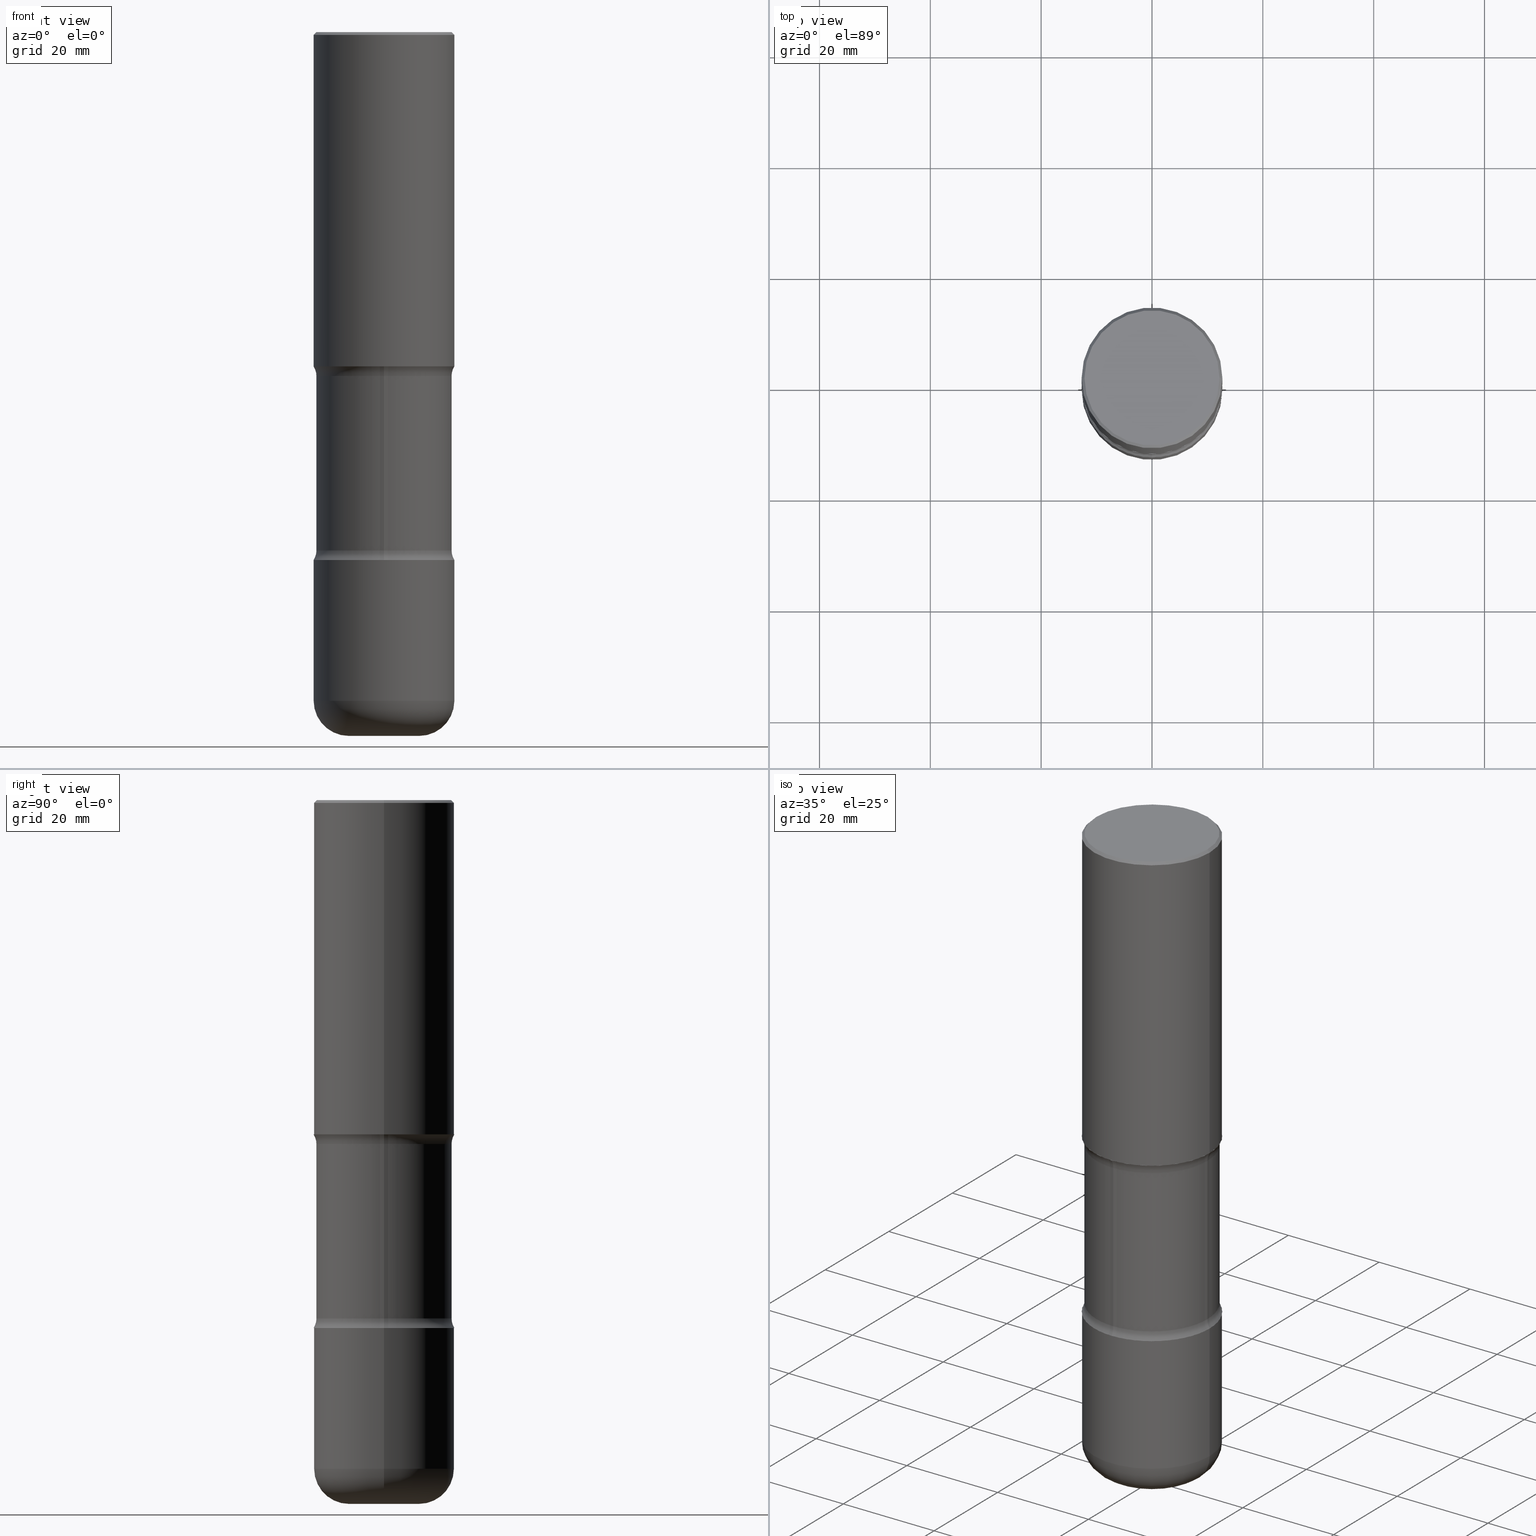
[diagram: canonical four-view strip — front | top / right | iso, engineering-drawing reading convention]
A machine part, canonical four-view strip (front | top / right | iso — engineering-drawing reading convention). The complete STEP part file that produces these views, byte-faithful:
ISO-10303-21;
HEADER;
FILE_DESCRIPTION (( 'STEP AP203' ),
    '1' );
FILE_NAME ('36258.STEP',
    '2023-03-11T07:13:19',
    ( '' ),
    ( '' ),
    'SwSTEP 2.0',
    'SolidWorks 2022',
    '' );
FILE_SCHEMA (( 'CONFIG_CONTROL_DESIGN' ));
ENDSEC;

DATA;
#1 = DIRECTION ( 'NONE',  ( -2.445468806185136597E-29, 3.491481338843145583E-15, 1.000000000000000000 ) ) ;
#2 = CARTESIAN_POINT ( 'NONE',  ( -0.4799999999999999267, -4.929010667377771797E-15, -2.442823299831252903 ) ) ;
#3 = CARTESIAN_POINT ( 'NONE',  ( 0.4999999999999996669, -3.500078625662626713E-15, -0.02000000000000010797 ) ) ;
#4 = LINE ( 'NONE', #75, #434 ) ;
#5 = EDGE_CURVE ( 'NONE', #775, #15, #606, .T. ) ;
#6 = DIRECTION ( 'NONE',  ( 6.982962677686265922E-15, 1.000000000000000000, -3.278217592397115862E-15 ) ) ;
#7 = CARTESIAN_POINT ( 'NONE',  ( 0.000000000000000000, 0.000000000000000000, 0.000000000000000000 ) ) ;
#8 = CLOSED_SHELL ( 'NONE', ( #347, #468, #777, #763, #713, #550, #351, #736 ) ) ;
#9 = AXIS2_PLACEMENT_3D ( 'NONE', #7, #258, #563 ) ;
#10 = AXIS2_PLACEMENT_3D ( 'NONE', #608, #300, #544 ) ;
#11 = ORIENTED_EDGE ( 'NONE', *, *, #371, .F. ) ;
#12 = AXIS2_PLACEMENT_3D ( 'NONE', #76, #328, #13 ) ;
#13 = DIRECTION ( 'NONE',  ( 1.000000000000000000, -6.982962677686265922E-15, 4.876176775795935793E-29 ) ) ;
#14 = DIRECTION ( 'NONE',  ( 6.982962677686265922E-15, 1.000000000000000000, -3.278217592397115862E-15 ) ) ;
#15 = VERTEX_POINT ( 'NONE', #179 ) ;
#16 = ORIENTED_EDGE ( 'NONE', *, *, #20, .F. ) ;
#17 = ADVANCED_FACE ( 'NONE', ( #545 ), #117, .F. ) ;
#18 = CYLINDRICAL_SURFACE ( 'NONE', #380, 0.4800000000000000933 ) ;
#19 = CYLINDRICAL_SURFACE ( 'NONE', #216, 0.4800000000000000933 ) ;
#20 = EDGE_CURVE ( 'NONE', #334, #160, #279, .T. ) ;
#21 =( NAMED_UNIT ( * ) PLANE_ANGLE_UNIT ( ) SI_UNIT ( $, .RADIAN. ) );
#22 = ORIENTED_EDGE ( 'NONE', *, *, #439, .T. ) ;
#23 = LINE ( 'NONE', #353, #546 ) ;
#24 = CIRCLE ( 'NONE', #416, 0.2000000000000000111 ) ;
#25 = ORIENTED_EDGE ( 'NONE', *, *, #311, .F. ) ;
#26 = EDGE_LOOP ( 'NONE', ( #484, #674, #460, #744 ) ) ;
#27 = AXIS2_PLACEMENT_3D ( 'NONE', #506, #388, #685 ) ;
#28 = DIRECTION ( 'NONE',  ( 2.445077249876360463E-29, -3.492042069763313983E-15, -1.000000000000000000 ) ) ;
#29 = DIRECTION ( 'NONE',  ( -0.7071067811865452413, 2.468850131082233000E-15, -0.7071067811865497932 ) ) ;
#30 = ORIENTED_EDGE ( 'NONE', *, *, #628, .F. ) ;
#31 = EDGE_LOOP ( 'NONE', ( #387, #65 ) ) ;
#32 = CARTESIAN_POINT ( 'NONE',  ( 1.222734403092568523E-28, -1.745740669421572989E-14, -5.000000000000000000 ) ) ;
#33 = FACE_OUTER_BOUND ( 'NONE', #559, .T. ) ;
#34 = ORIENTED_EDGE ( 'NONE', *, *, #311, .T. ) ;
#35 = ADVANCED_FACE ( 'NONE', ( #663 ), #459, .T. ) ;
#36 = CC_DESIGN_PERSON_AND_ORGANIZATION_ASSIGNMENT ( #361, #116, ( #769 ) ) ;
#37 = ORIENTED_EDGE ( 'NONE', *, *, #622, .F. ) ;
#38 = AXIS2_PLACEMENT_3D ( 'NONE', #538, #290, #702 ) ;
#39 = CARTESIAN_POINT ( 'NONE',  ( 0.2500000000000000555, -1.920314736363729656E-14, -5.000000000000000000 ) ) ;
#40 = CIRCLE ( 'NONE', #617, 0.5000000000000000000 ) ;
#41 = DIRECTION ( 'NONE',  ( -1.000000000000000000, 6.982962677686267499E-15, 0.000000000000000000 ) ) ;
#42 = APPROVAL_PERSON_ORGANIZATION ( #655, #84, #670 ) ;
#43 = VERTEX_POINT ( 'NONE', #615 ) ;
#44 = APPROVAL ( #600, 'UNSPECIFIED' ) ;
#45 = DIRECTION ( 'NONE',  ( -1.000000000000000000, 6.982962677686265922E-15, -4.883557194083112340E-29 ) ) ;
#46 = VERTEX_POINT ( 'NONE', #794 ) ;
#47 = PERSON_AND_ORGANIZATION ( #399, #754 ) ;
#48 = DIRECTION ( 'NONE',  ( 2.438088387897960049E-29, -3.491481338843145188E-15, -1.000000000000000000 ) ) ;
#49 = ORIENTED_EDGE ( 'NONE', *, *, #164, .F. ) ;
#50 = APPROVAL_ROLE ( '' ) ;
#51 = CARTESIAN_POINT ( 'NONE',  ( -0.6050000000000000933, -8.557467683613607939E-15, -3.682176700168747541 ) ) ;
#52 = AXIS2_PLACEMENT_3D ( 'NONE', #800, #106, #372 ) ;
#53 = DIRECTION ( 'NONE',  ( 6.982962677686265922E-15, 1.000000000000000000, -3.492042069763314377E-15 ) ) ;
#54 = CARTESIAN_POINT ( 'NONE',  ( -3.430248998885673879E-15, -0.5000000000000131006, -3.749999999999998668 ) ) ;
#55 = VERTEX_POINT ( 'NONE', #552 ) ;
#56 = EDGE_CURVE ( 'NONE', #688, #46, #63, .T. ) ;
#57 = DATE_AND_TIME ( #413, #437 ) ;
#58 = FACE_OUTER_BOUND ( 'NONE', #636, .T. ) ;
#59 = VERTEX_POINT ( 'NONE', #549 ) ;
#60 = VERTEX_POINT ( 'NONE', #503 ) ;
#61 = DIRECTION ( 'NONE',  ( -1.000000000000000000, 7.105427357600998703E-15, 0.000000000000000000 ) ) ;
#62 = CIRCLE ( 'NONE', #705, 0.4799999999999999267 ) ;
#63 = LINE ( 'NONE', #308, #692 ) ;
#64 = AXIS2_PLACEMENT_3D ( 'NONE', #497, #45, #182 ) ;
#65 = ORIENTED_EDGE ( 'NONE', *, *, #164, .T. ) ;
#66 = AXIS2_PLACEMENT_3D ( 'NONE', #759, #384, #261 ) ;
#67 = AXIS2_PLACEMENT_3D ( 'NONE', #400, #159, #698 ) ;
#68 = DIRECTION ( 'NONE',  ( 6.982962677686265922E-15, 1.000000000000000000, -4.553079989440437514E-15 ) ) ;
#69 = EDGE_CURVE ( 'NONE', #778, #273, #798, .T. ) ;
#70 = DIRECTION ( 'NONE',  ( -2.445468806185136597E-29, 3.491481338843145583E-15, 1.000000000000000000 ) ) ;
#71 = EDGE_CURVE ( 'NONE', #55, #593, #364, .T. ) ;
#72 = ORIENTED_EDGE ( 'NONE', *, *, #528, .F. ) ;
#73 = CARTESIAN_POINT ( 'NONE',  ( 5.807988414689700538E-29, -8.292268179752471696E-15, -2.375000000000000000 ) ) ;
#74 = APPLICATION_CONTEXT ( 'configuration controlled 3d designs of mechanical parts and assemblies' ) ;
#75 = CARTESIAN_POINT ( 'NONE',  ( 0.5000000000000000000, -3.491481338843133355E-15, 2.438088387897967896E-29 ) ) ;
#76 = CARTESIAN_POINT ( 'NONE',  ( 5.807988414689700538E-29, -8.292268179752471696E-15, -2.375000000000000000 ) ) ;
#77 = CYLINDRICAL_SURFACE ( 'NONE', #9, 0.5000000000000000000 ) ;
#78 = CIRCLE ( 'NONE', #293, 0.5000000000000000000 ) ;
#79 = EDGE_LOOP ( 'NONE', ( #533, #728, #412, #695 ) ) ;
#80 = DIRECTION ( 'NONE',  ( 1.000000000000000000, -6.982962677686276966E-15, 0.000000000000000000 ) ) ;
#81 = DIRECTION ( 'NONE',  ( 2.445077249876360463E-29, -3.492042069763313983E-15, -1.000000000000000000 ) ) ;
#82 = ADVANCED_FACE ( 'NONE', ( #498 ), #432, .T. ) ;
#83 = EDGE_LOOP ( 'NONE', ( #585, #151, #302, #210 ) ) ;
#84 = APPROVAL ( #786, 'UNSPECIFIED' ) ;
#85 = DIRECTION ( 'NONE',  ( 1.000000000000000000, -6.982962677686265922E-15, 4.883557194083112901E-29 ) ) ;
#86 = DIRECTION ( 'NONE',  ( -2.445468806185136597E-29, 3.491481338843145583E-15, 1.000000000000000000 ) ) ;
#87 = ORIENTED_EDGE ( 'NONE', *, *, #797, .F. ) ;
#88 = FACE_OUTER_BOUND ( 'NONE', #298, .T. ) ;
#89 = AXIS2_PLACEMENT_3D ( 'NONE', #414, #575, #645 ) ;
#90 = AXIS2_PLACEMENT_3D ( 'NONE', #73, #1, #199 ) ;
#91 = PERSON_AND_ORGANIZATION_ROLE ( 'design_owner' ) ;
#92 = ORIENTED_EDGE ( 'NONE', *, *, #93, .F. ) ;
#93 = EDGE_CURVE ( 'NONE', #757, #96, #519, .T. ) ;
#94 = CARTESIAN_POINT ( 'NONE',  ( 9.004648259124392254E-29, -1.285625123496221394E-14, -3.682176700168747541 ) ) ;
#95 = ORIENTED_EDGE ( 'NONE', *, *, #424, .T. ) ;
#96 = VERTEX_POINT ( 'NONE', #126 ) ;
#97 = PLANE ( 'NONE',  #463 ) ;
#98 = CARTESIAN_POINT ( 'NONE',  ( 1.161597682937940108E-28, -1.658453635950494339E-14, -4.750000000000000000 ) ) ;
#99 = ORIENTED_EDGE ( 'NONE', *, *, #231, .F. ) ;
#100 = APPLICATION_CONTEXT ( 'configuration controlled 3d designs of mechanical parts and assemblies' ) ;
#101 = EDGE_LOOP ( 'NONE', ( #269, #638 ) ) ;
#102 = CARTESIAN_POINT ( 'NONE',  ( 3.491481338843225258E-15, 0.4999999999999869549, -3.750000000000001776 ) ) ;
#103 = VERTEX_POINT ( 'NONE', #554 ) ;
#104 = APPROVAL_DATE_TIME ( #421, #84 ) ;
#105 = CIRCLE ( 'NONE', #565, 0.4799999999999996492 ) ;
#106 = DIRECTION ( 'NONE',  ( 2.445077249876360463E-29, -3.492042069763313983E-15, -1.000000000000000000 ) ) ;
#107 = AXIS2_PLACEMENT_3D ( 'NONE', #690, #632, #80 ) ;
#108 = ORIENTED_EDGE ( 'NONE', *, *, #788, .F. ) ;
#109 = DIRECTION ( 'NONE',  ( -2.445468806185136597E-29, 3.491481338843145583E-15, 1.000000000000000000 ) ) ;
#110 = ORIENTED_EDGE ( 'NONE', *, *, #231, .T. ) ;
#111 = DATE_TIME_ROLE ( 'classification_date' ) ;
#112 = DIRECTION ( 'NONE',  ( 1.000000000000000000, -6.982962677686267499E-15, 4.883557194083114022E-29 ) ) ;
#113 = ORIENTED_EDGE ( 'NONE', *, *, #135, .T. ) ;
#114 = ORIENTED_EDGE ( 'NONE', *, *, #485, .F. ) ;
#115 = EDGE_CURVE ( 'NONE', #273, #60, #229, .T. ) ;
#116 = PERSON_AND_ORGANIZATION_ROLE ( 'design_supplier' ) ;
#117 = TOROIDAL_SURFACE ( 'NONE', #366, 0.6049999999999998712, 0.1249999999999999445 ) ;
#118 = DIRECTION ( 'NONE',  ( -1.000000000000000000, 6.982962677686265922E-15, -4.876176775795935793E-29 ) ) ;
#119 = AXIS2_PLACEMENT_3D ( 'NONE', #664, #603, #255 ) ;
#120 = LOCAL_TIME ( 2, 13, 19.00000000000000000, #425 ) ;
#121 = DIRECTION ( 'NONE',  ( 1.000000000000000000, -6.982962677686266711E-15, 0.000000000000000000 ) ) ;
#122 = APPLICATION_PROTOCOL_DEFINITION ( 'international standard', 'config_control_design', 1994, #100 ) ;
#123 = PLANE ( 'NONE',  #10 ) ;
#124 = DIRECTION ( 'NONE',  ( -6.982962677686266711E-15, -1.000000000000000000, 3.491481338843145583E-15 ) ) ;
#125 = DIRECTION ( 'NONE',  ( -2.445468806185136597E-29, 3.491481338843145583E-15, 1.000000000000000000 ) ) ;
#126 = CARTESIAN_POINT ( 'NONE',  ( -3.430248998885707800E-15, -0.5000000000000083267, -2.374999999999998668 ) ) ;
#127 = ADVANCED_FACE ( 'NONE', ( #442 ), #19, .T. ) ;
#128 = CARTESIAN_POINT ( 'NONE',  ( -0.5000000000000000000, -1.303182268070444246E-14, -4.750000000000000000 ) ) ;
#129 = AXIS2_PLACEMENT_3D ( 'NONE', #241, #733, #609 ) ;
#130 = DIRECTION ( 'NONE',  ( 2.445077249876360463E-29, -3.492042069763313983E-15, -1.000000000000000000 ) ) ;
#131 = AXIS2_PLACEMENT_3D ( 'NONE', #683, #133, #382 ) ;
#132 = ADVANCED_FACE ( 'NONE', ( #383 ), #568, .F. ) ;
#133 = DIRECTION ( 'NONE',  ( -2.445468806185136597E-29, 3.491481338843145583E-15, 1.000000000000000000 ) ) ;
#134 = CARTESIAN_POINT ( 'NONE',  ( 0.5000000000000000000, -1.178374951859560347E-14, -2.375000000000000000 ) ) ;
#135 = EDGE_CURVE ( 'NONE', #198, #60, #254, .T. ) ;
#136 = DIRECTION ( 'NONE',  ( -2.445468806185136877E-29, 3.491481338843145188E-15, 1.000000000000000000 ) ) ;
#137 = CARTESIAN_POINT ( 'NONE',  ( 9.004674815765322981E-29, -1.285621320434089027E-14, -3.682176700168747541 ) ) ;
#138 = ORIENTED_EDGE ( 'NONE', *, *, #457, .T. ) ;
#139 = ORIENTED_EDGE ( 'NONE', *, *, #424, .F. ) ;
#140 = CYLINDRICAL_SURFACE ( 'NONE', #356, 0.4800000000000000933 ) ;
#141 = ORIENTED_EDGE ( 'NONE', *, *, #594, .F. ) ;
#142 = DIRECTION ( 'NONE',  ( 1.000000000000000000, -6.982962677686266711E-15, 0.000000000000000000 ) ) ;
#143 = EDGE_CURVE ( 'NONE', #593, #46, #265, .T. ) ;
#144 = AXIS2_PLACEMENT_3D ( 'NONE', #678, #676, #6 ) ;
#145 = CC_DESIGN_APPROVAL ( #84, ( #619 ) ) ;
#146 = DIRECTION ( 'NONE',  ( -2.445468806185136597E-29, 3.491481338843145583E-15, 1.000000000000000000 ) ) ;
#147 = DIRECTION ( 'NONE',  ( 6.982962677686265922E-15, 1.000000000000000000, -3.414809992080327938E-15 ) ) ;
#148 = ORIENTED_EDGE ( 'NONE', *, *, #208, .F. ) ;
#149 = EDGE_LOOP ( 'NONE', ( #761, #259, #360, #37 ) ) ;
#150 = CARTESIAN_POINT ( 'NONE',  ( 1.084885639565374248E-27, -1.548929168812571305E-13, -44.36309458625913749 ) ) ;
#151 = ORIENTED_EDGE ( 'NONE', *, *, #586, .T. ) ;
#152 = LENGTH_MEASURE_WITH_UNIT ( LENGTH_MEASURE( 0.02539999999999999897 ), #469 );
#153 = ORIENTED_EDGE ( 'NONE', *, *, #167, .T. ) ;
#154 = DIRECTION ( 'NONE',  ( 2.445468806185136597E-29, -3.491481338843145583E-15, -1.000000000000000000 ) ) ;
#155 = MANIFOLD_SOLID_BREP ( 'Body-Move/Copy2[1]', #433 ) ;
#156 = EDGE_LOOP ( 'NONE', ( #487, #783, #183, #539 ) ) ;
#157 = AXIS2_PLACEMENT_3D ( 'NONE', #466, #86, #583 ) ;
#158 = AXIS2_PLACEMENT_3D ( 'NONE', #286, #531, #714 ) ;
#159 = DIRECTION ( 'NONE',  ( 0.000000000000000000, 0.000000000000000000, 1.000000000000000000 ) ) ;
#160 = VERTEX_POINT ( 'NONE', #324 ) ;
#161 = DIRECTION ( 'NONE',  ( -2.445468806185136597E-29, 3.491481338843145583E-15, 1.000000000000000000 ) ) ;
#162 = EDGE_LOOP ( 'NONE', ( #114, #532, #689, #139 ) ) ;
#163 = ORIENTED_EDGE ( 'NONE', *, *, #277, .T. ) ;
#164 = EDGE_CURVE ( 'NONE', #472, #333, #805, .T. ) ;
#165 = DIRECTION ( 'NONE',  ( 2.445077249876360463E-29, -3.492042069763313588E-15, -1.000000000000000000 ) ) ;
#166 = DIRECTION ( 'NONE',  ( -2.445468806185136597E-29, 3.491481338843145583E-15, 1.000000000000000000 ) ) ;
#167 = EDGE_CURVE ( 'NONE', #703, #59, #377, .T. ) ;
#168 = ORIENTED_EDGE ( 'NONE', *, *, #589, .F. ) ;
#169 = EDGE_CURVE ( 'NONE', #59, #703, #417, .T. ) ;
#170 = DATE_AND_TIME ( #235, #501 ) ;
#171 = CARTESIAN_POINT ( 'NONE',  ( 5.807988414689700538E-29, -8.292268179752471696E-15, -2.375000000000000000 ) ) ;
#172 = ORIENTED_EDGE ( 'NONE', *, *, #512, .F. ) ;
#173 = MANIFOLD_SOLID_BREP ( 'Body-Move/Copy2[2]', #630 ) ;
#174 = CONICAL_SURFACE ( 'NONE', #499, 1127.411546571512872, 1.535889741755011029 ) ;
#175 = AXIS2_PLACEMENT_3D ( 'NONE', #486, #48, #118 ) ;
#176 = PERSON_AND_ORGANIZATION_ROLE ( 'classification_officer' ) ;
#177 = AXIS2_PLACEMENT_3D ( 'NONE', #476, #651, #225 ) ;
#178 = FACE_OUTER_BOUND ( 'NONE', #149, .T. ) ;
#179 = CARTESIAN_POINT ( 'NONE',  ( 0.5000000000000000000, -2.007601769834807675E-14, -4.750000000000000000 ) ) ;
#180 = ORIENTED_EDGE ( 'NONE', *, *, #327, .T. ) ;
#181 = PERSON_AND_ORGANIZATION_ROLE ( 'creator' ) ;
#182 = DIRECTION ( 'NONE',  ( -6.982962677686265133E-15, -1.000000000000000000, 0.000000000000000000 ) ) ;
#183 = ORIENTED_EDGE ( 'NONE', *, *, #212, .T. ) ;
#184 = APPROVAL_ROLE ( '' ) ;
#185 = EDGE_CURVE ( 'NONE', #629, #60, #390, .T. ) ;
#186 = DIRECTION ( 'NONE',  ( 0.7071067811865452413, -7.319954787623248157E-15, -0.7071067811865497932 ) ) ;
#187 = APPROVAL_DATE_TIME ( #57, #518 ) ;
#188 = CIRCLE ( 'NONE', #157, 0.4799999999999999267 ) ;
#189 = PLANE ( 'NONE',  #175 ) ;
#190 = AXIS2_PLACEMENT_3D ( 'NONE', #548, #109, #240 ) ;
#191 = AXIS2_PLACEMENT_3D ( 'NONE', #32, #338, #576 ) ;
#192 = CARTESIAN_POINT ( 'NONE',  ( -4.150601288651715033E-15, -0.6050000000000084199, -2.442823299831251127 ) ) ;
#193 = VERTEX_POINT ( 'NONE', #687 ) ;
#194 = PRODUCT_DEFINITION_SHAPE ( 'NONE', 'NONE',  #197 ) ;
#195 = FACE_OUTER_BOUND ( 'NONE', #376, .T. ) ;
#196 = DIRECTION ( 'NONE',  ( 1.000000000000000000, -6.982962677686266711E-15, 0.000000000000000000 ) ) ;
#197 = PRODUCT_DEFINITION ( 'UNKNOWN', '', #769, #493 ) ;
#198 = VERTEX_POINT ( 'NONE', #134 ) ;
#199 = DIRECTION ( 'NONE',  ( 1.000000000000000000, -6.982962677686265133E-15, 0.000000000000000000 ) ) ;
#200 = DIRECTION ( 'NONE',  ( 6.982962677686265922E-15, 1.000000000000000000, -3.278217592397115862E-15 ) ) ;
#201 = DIRECTION ( 'NONE',  ( 1.000000000000000000, -6.982962677686267499E-15, 4.876036955247132767E-29 ) ) ;
#202 = AXIS2_PLACEMENT_3D ( 'NONE', #275, #70, #142 ) ;
#203 = CARTESIAN_POINT ( 'NONE',  ( 9.004674815765322981E-29, -1.285621320434089027E-14, -3.682176700168747541 ) ) ;
#204 = CONICAL_SURFACE ( 'NONE', #419, 0.4999999999999996669, 0.7853981633974450594 ) ;
#205 = VERTEX_POINT ( 'NONE', #561 ) ;
#206 = CARTESIAN_POINT ( 'NONE',  ( 3.351822085289499056E-15, 0.4799999999999873257, -3.682176700168749317 ) ) ;
#207 = CARTESIAN_POINT ( 'NONE',  ( 1.220830945357531404E-28, -1.743582138958183345E-14, -4.993015846101650723 ) ) ;
#208 = EDGE_CURVE ( 'NONE', #333, #472, #765, .T. ) ;
#209 = ORIENTED_EDGE ( 'NONE', *, *, #729, .T. ) ;
#210 = ORIENTED_EDGE ( 'NONE', *, *, #729, .F. ) ;
#211 = DIRECTION ( 'NONE',  ( 2.445077249876360463E-29, -3.492042069763313588E-15, -1.000000000000000000 ) ) ;
#212 = EDGE_CURVE ( 'NONE', #15, #205, #4, .T. ) ;
#213 = FACE_OUTER_BOUND ( 'NONE', #101, .T. ) ;
#214 = EDGE_LOOP ( 'NONE', ( #272, #291, #295, #350 ) ) ;
#215 = DIRECTION ( 'NONE',  ( 1.000000000000000000, -6.982962677686264344E-15, 0.000000000000000000 ) ) ;
#216 = AXIS2_PLACEMENT_3D ( 'NONE', #448, #507, #750 ) ;
#217 = CIRCLE ( 'NONE', #190, 0.5000000000000000000 ) ;
#218 = TOROIDAL_SURFACE ( 'NONE', #392, 0.6049999999999998712, 0.1249999999999999445 ) ;
#219 = FACE_OUTER_BOUND ( 'NONE', #233, .T. ) ;
#220 = ORIENTED_EDGE ( 'NONE', *, *, #406, .F. ) ;
#221 = DIRECTION ( 'NONE',  ( 1.000000000000000000, -6.982962677686269077E-15, 0.000000000000000000 ) ) ;
#222 = FACE_OUTER_BOUND ( 'NONE', #234, .T. ) ;
#223 = CARTESIAN_POINT ( 'NONE',  ( -2.799738369678767810E-18, -1.743302165121203264E-14, -4.993015846101650723 ) ) ;
#224 = EDGE_LOOP ( 'NONE', ( #428, #599, #758, #359 ) ) ;
#225 = DIRECTION ( 'NONE',  ( -6.982962677686265133E-15, -1.000000000000000000, 0.000000000000000000 ) ) ;
#226 = EDGE_LOOP ( 'NONE', ( #665, #16 ) ) ;
#227 = DIRECTION ( 'NONE',  ( 1.000000000000000000, -6.982962677686265922E-15, 0.000000000000000000 ) ) ;
#228 = ORIENTED_EDGE ( 'NONE', *, *, #788, .T. ) ;
#229 = CIRCLE ( 'NONE', #616, 0.4799999999999999267 ) ;
#230 = CIRCLE ( 'NONE', #331, 0.2500000000000000555 ) ;
#231 = EDGE_CURVE ( 'NONE', #774, #301, #24, .T. ) ;
#232 = DIRECTION ( 'NONE',  ( 1.000000000000000000, -6.982962677686265133E-15, 0.000000000000000000 ) ) ;
#233 = EDGE_LOOP ( 'NONE', ( #30, #650 ) ) ;
#234 = EDGE_LOOP ( 'NONE', ( #483, #748, #113, #34 ) ) ;
#235 = CALENDAR_DATE ( 2023, 11, 3 ) ;
#236 = CARTESIAN_POINT ( 'NONE',  ( -0.5000000000000001110, -9.540341341861294907E-15, -3.750000000000000000 ) ) ;
#237 = CC_DESIGN_DATE_AND_TIME_ASSIGNMENT ( #170, #111, ( #619 ) ) ;
#238 = ORIENTED_EDGE ( 'NONE', *, *, #479, .F. ) ;
#239 = CALENDAR_DATE ( 2023, 11, 3 ) ;
#240 = DIRECTION ( 'NONE',  ( 1.000000000000000000, -6.982962677686266711E-15, 0.000000000000000000 ) ) ;
#241 = CARTESIAN_POINT ( 'NONE',  ( 4.890937612370299433E-31, -6.982962677686328587E-17, -0.02000000000000010797 ) ) ;
#242 = AXIS2_PLACEMENT_3D ( 'NONE', #137, #696, #627 ) ;
#243 = CIRCLE ( 'NONE', #64, 0.1250000000000000278 ) ;
#244 = VECTOR ( 'NONE', #211, 39.37007874015748143 ) ;
#245 = FACE_BOUND ( 'NONE', #724, .T. ) ;
#246 = CARTESIAN_POINT ( 'NONE',  ( 0.000000000000000000, 0.000000000000000000, 0.000000000000000000 ) ) ;
#247 = EDGE_CURVE ( 'NONE', #757, #103, #62, .T. ) ;
#248 = PERSON_AND_ORGANIZATION ( #399, #754 ) ;
#249 = DIRECTION ( 'NONE',  ( -1.000000000000000000, 7.105427357601001859E-15, 0.000000000000000000 ) ) ;
#250 = CARTESIAN_POINT ( 'NONE',  ( 5.973848178759570522E-29, -8.529071965452055172E-15, -2.442823299831253347 ) ) ;
#251 = CALENDAR_DATE ( 2023, 11, 3 ) ;
#252 = DIRECTION ( 'NONE',  ( -2.445468806185136597E-29, 3.491481338843145583E-15, 1.000000000000000000 ) ) ;
#253 = ORIENTED_EDGE ( 'NONE', *, *, #586, .F. ) ;
#254 = CIRCLE ( 'NONE', #751, 0.1249999999999999029 ) ;
#255 = DIRECTION ( 'NONE',  ( -1.000000000000000000, 7.105427357601005014E-15, 0.000000000000000000 ) ) ;
#256 = DIRECTION ( 'NONE',  ( -2.445468806185136597E-29, 3.491481338843145583E-15, 1.000000000000000000 ) ) ;
#257 = FACE_OUTER_BOUND ( 'NONE', #667, .T. ) ;
#258 = DIRECTION ( 'NONE',  ( -2.445468806185136597E-29, 3.491481338843145583E-15, 1.000000000000000000 ) ) ;
#259 = ORIENTED_EDGE ( 'NONE', *, *, #56, .T. ) ;
#260 = ORIENTED_EDGE ( 'NONE', *, *, #393, .T. ) ;
#261 = DIRECTION ( 'NONE',  ( 6.982962677686265922E-15, 1.000000000000000000, -3.278217592397115862E-15 ) ) ;
#262 = DIRECTION ( 'NONE',  ( 6.860497997771528407E-15, 1.000000000000000000, 0.000000000000000000 ) ) ;
#263 = DIRECTION ( 'NONE',  ( -2.445468806185136877E-29, 3.491481338843145188E-15, 1.000000000000000000 ) ) ;
#264 = ADVANCED_FACE ( 'NONE', ( #637 ), #77, .T. ) ;
#265 = CIRCLE ( 'NONE', #202, 0.4999999999999996669 ) ;
#266 = DIRECTION ( 'NONE',  ( 1.000000000000000000, -6.860497997771530774E-15, 4.840792012650877593E-29 ) ) ;
#267 = AXIS2_PLACEMENT_3D ( 'NONE', #796, #721, #422 ) ;
#268 =( GEOMETRIC_REPRESENTATION_CONTEXT ( 3 ) GLOBAL_UNCERTAINTY_ASSIGNED_CONTEXT ( ( #520 ) ) GLOBAL_UNIT_ASSIGNED_CONTEXT ( ( #411, #21, #288 ) ) REPRESENTATION_CONTEXT ( 'NONE', 'WORKASPACE' ) );
#269 = ORIENTED_EDGE ( 'NONE', *, *, #589, .T. ) ;
#270 = LINE ( 'NONE', #513, #244 ) ;
#271 = DIRECTION ( 'NONE',  ( -6.982962677686266711E-15, -1.000000000000000000, 3.491481338843145583E-15 ) ) ;
#272 = ORIENTED_EDGE ( 'NONE', *, *, #56, .F. ) ;
#273 = VERTEX_POINT ( 'NONE', #2 ) ;
#274 = CARTESIAN_POINT ( 'NONE',  ( 5.807988414689700538E-29, -8.292268179752471696E-15, -2.375000000000000000 ) ) ;
#275 = CARTESIAN_POINT ( 'NONE',  ( 4.890937612370299433E-31, -6.982962677686328587E-17, -0.02000000000000010797 ) ) ;
#276 = APPLICATION_PROTOCOL_DEFINITION ( 'international standard', 'config_control_design', 1994, #74 ) ;
#277 = EDGE_CURVE ( 'NONE', #472, #59, #680, .T. ) ;
#278 = DIRECTION ( 'NONE',  ( -2.445468806185136597E-29, 3.491481338843145583E-15, 1.000000000000000000 ) ) ;
#279 = CIRCLE ( 'NONE', #316, 0.5000000000000000000 ) ;
#280 = VECTOR ( 'NONE', #263, 39.37007874015748143 ) ;
#281 = CC_DESIGN_APPROVAL ( #518, ( #769 ) ) ;
#282 = ADVANCED_FACE ( 'NONE', ( #760 ), #342, .F. ) ;
#283 = LINE ( 'NONE', #223, #806 ) ;
#284 = VERTEX_POINT ( 'NONE', #207 ) ;
#285 = EDGE_LOOP ( 'NONE', ( #582, #456, #529, #418 ) ) ;
#286 = CARTESIAN_POINT ( 'NONE',  ( 5.807988414689700538E-29, -8.292268179752471696E-15, -2.375000000000000000 ) ) ;
#287 = ORIENTED_EDGE ( 'NONE', *, *, #725, .T. ) ;
#288 =( NAMED_UNIT ( * ) SI_UNIT ( $, .STERADIAN. ) SOLID_ANGLE_UNIT ( ) );
#289 = ORIENTED_EDGE ( 'NONE', *, *, #167, .F. ) ;
#290 = DIRECTION ( 'NONE',  ( -2.445468806185136597E-29, 3.491481338843145583E-15, 1.000000000000000000 ) ) ;
#291 = ORIENTED_EDGE ( 'NONE', *, *, #528, .T. ) ;
#292 = AXIS2_PLACEMENT_3D ( 'NONE', #481, #161, #773 ) ;
#293 = AXIS2_PLACEMENT_3D ( 'NONE', #443, #335, #614 ) ;
#294 = DIRECTION ( 'NONE',  ( 2.445077249876360463E-29, -3.492042069763313983E-15, -1.000000000000000000 ) ) ;
#295 = ORIENTED_EDGE ( 'NONE', *, *, #622, .T. ) ;
#296 = DATE_TIME_ROLE ( 'creation_date' ) ;
#297 = FACE_OUTER_BOUND ( 'NONE', #83, .T. ) ;
#298 = EDGE_LOOP ( 'NONE', ( #709, #148, #451, #153 ) ) ;
#299 = COORDINATED_UNIVERSAL_TIME_OFFSET ( 5, 0, .BEHIND. ) ;
#300 = DIRECTION ( 'NONE',  ( -2.445077249876360463E-29, 3.492042069763313588E-15, 1.000000000000000000 ) ) ;
#301 = VERTEX_POINT ( 'NONE', #450 ) ;
#302 = ORIENTED_EDGE ( 'NONE', *, *, #20, .T. ) ;
#303 = AXIS2_PLACEMENT_3D ( 'NONE', #203, #130, #147 ) ;
#304 = AXIS2_PLACEMENT_3D ( 'NONE', #803, #787, #491 ) ;
#305 = SHAPE_DEFINITION_REPRESENTATION ( #194, #726 ) ;
#306 = ADVANCED_FACE ( 'NONE', ( #213 ), #691, .F. ) ;
#307 = DIRECTION ( 'NONE',  ( 7.105427357601001859E-15, 1.000000000000000000, -3.491481338843145583E-15 ) ) ;
#308 = CARTESIAN_POINT ( 'NONE',  ( -0.4999999999999998335, 3.552713678800499746E-15, -2.459467545127452330E-29 ) ) ;
#309 = ORIENTED_EDGE ( 'NONE', *, *, #71, .F. ) ;
#310 = CYLINDRICAL_SURFACE ( 'NONE', #644, 0.4999999999999998335 ) ;
#311 = EDGE_CURVE ( 'NONE', #60, #273, #188, .T. ) ;
#312 = EDGE_LOOP ( 'NONE', ( #346, #410, #108 ) ) ;
#313 = PRODUCT ( '36258', '36258', '', ( #694 ) ) ;
#314 = ADVANCED_FACE ( 'NONE', ( #339 ), #707, .T. ) ;
#315 = DIRECTION ( 'NONE',  ( 6.860497997771532351E-15, 1.000000000000000000, 0.000000000000000000 ) ) ;
#316 = AXIS2_PLACEMENT_3D ( 'NONE', #495, #789, #121 ) ;
#317 = LINE ( 'NONE', #516, #280 ) ;
#318 = TOROIDAL_SURFACE ( 'NONE', #304, 0.6050000000000000933, 0.1250000000000000000 ) ;
#319 = PRODUCT_RELATED_PRODUCT_CATEGORY ( 'detail', '', ( #313 ) ) ;
#320 = TOROIDAL_SURFACE ( 'NONE', #489, 0.6049999999999998712, 0.1249999999999999445 ) ;
#321 = CARTESIAN_POINT ( 'NONE',  ( -4.150601288651686634E-15, -0.6050000000000129718, -3.682176700168745320 ) ) ;
#322 = ORIENTED_EDGE ( 'NONE', *, *, #169, .T. ) ;
#323 = CARTESIAN_POINT ( 'NONE',  ( -0.2500000000000000000, -1.480817952010469293E-14, -4.750000000000000000 ) ) ;
#324 = CARTESIAN_POINT ( 'NONE',  ( 0.5000000000000001110, -1.658453635950493077E-14, -3.750000000000000000 ) ) ;
#325 = CARTESIAN_POINT ( 'NONE',  ( -0.5000000000000000000, 3.552713678800500929E-15, -2.459467545127452891E-29 ) ) ;
#326 = DIRECTION ( 'NONE',  ( 6.982962677686265922E-15, 1.000000000000000000, -3.414809992080329516E-15 ) ) ;
#327 = EDGE_CURVE ( 'NONE', #46, #593, #389, .T. ) ;
#328 = DIRECTION ( 'NONE',  ( -2.438088387897960049E-29, 3.491481338843145188E-15, 1.000000000000000000 ) ) ;
#329 = TOROIDAL_SURFACE ( 'NONE', #89, 0.6050000000000000933, 0.1250000000000000000 ) ;
#330 = DIRECTION ( 'NONE',  ( 2.445077249876360463E-29, -3.492042069763313983E-15, -1.000000000000000000 ) ) ;
#331 = AXIS2_PLACEMENT_3D ( 'NONE', #441, #556, #560 ) ;
#332 = APPROVAL_PERSON_ORGANIZATION ( #248, #44, #184 ) ;
#333 = VERTEX_POINT ( 'NONE', #102 ) ;
#334 = VERTEX_POINT ( 'NONE', #236 ) ;
#335 = DIRECTION ( 'NONE',  ( -2.445468806185136597E-29, 3.491481338843145583E-15, 1.000000000000000000 ) ) ;
#336 = CARTESIAN_POINT ( 'NONE',  ( 3.351822085289405181E-15, 0.4799999999999996492, -1.669508273909558064E-15 ) ) ;
#337 = ADVANCED_FACE ( 'NONE', ( #409 ), #174, .F. ) ;
#338 = DIRECTION ( 'NONE',  ( -2.445468806185136597E-29, 3.491481338843145583E-15, 1.000000000000000000 ) ) ;
#339 = FACE_OUTER_BOUND ( 'NONE', #26, .T. ) ;
#340 = CARTESIAN_POINT ( 'NONE',  ( 5.973848178759570522E-29, -8.529071965452055172E-15, -2.442823299831253347 ) ) ;
#341 = LINE ( 'NONE', #579, #522 ) ;
#342 = TOROIDAL_SURFACE ( 'NONE', #508, 0.6049999999999998712, 0.1249999999999999445 ) ;
#343 = AXIS2_PLACEMENT_3D ( 'NONE', #98, #166, #652 ) ;
#344 = VERTEX_POINT ( 'NONE', #398 ) ;
#345 = CARTESIAN_POINT ( 'NONE',  ( -0.2500000000000000555, -1.435643626775996094E-14, -5.000000000000000000 ) ) ;
#346 = ORIENTED_EDGE ( 'NONE', *, *, #439, .F. ) ;
#347 = ADVANCED_FACE ( 'NONE', ( #784 ), #401, .T. ) ;
#348 = CARTESIAN_POINT ( 'NONE',  ( 9.170508023194262238E-29, -1.309305502066179741E-14, -3.750000000000000000 ) ) ;
#349 = DIRECTION ( 'NONE',  ( 2.445468806185136597E-29, -3.491481338843145583E-15, -1.000000000000000000 ) ) ;
#350 = ORIENTED_EDGE ( 'NONE', *, *, #327, .F. ) ;
#351 = ADVANCED_FACE ( 'NONE', ( #717 ), #329, .F. ) ;
#352 = CARTESIAN_POINT ( 'NONE',  ( 5.973848178759570522E-29, -8.529071965452055172E-15, -2.442823299831253347 ) ) ;
#353 = CARTESIAN_POINT ( 'NONE',  ( 2.799738369922973030E-18, -1.743302165121203264E-14, -4.993015846101650723 ) ) ;
#354 = ORIENTED_EDGE ( 'NONE', *, *, #628, .T. ) ;
#355 = AXIS2_PLACEMENT_3D ( 'NONE', #517, #81, #14 ) ;
#356 = AXIS2_PLACEMENT_3D ( 'NONE', #447, #620, #68 ) ;
#357 = CIRCLE ( 'NONE', #107, 0.1250000000000000278 ) ;
#358 = CARTESIAN_POINT ( 'NONE',  ( -3.131554243005659264E-46, 4.471029511141341874E-32, 1.280553747030123384E-17 ) ) ;
#359 = ORIENTED_EDGE ( 'NONE', *, *, #169, .F. ) ;
#360 = ORIENTED_EDGE ( 'NONE', *, *, #143, .F. ) ;
#361 = PERSON_AND_ORGANIZATION ( #399, #754 ) ;
#362 = ADVANCED_FACE ( 'NONE', ( #591 ), #779, .F. ) ;
#363 = DIRECTION ( 'NONE',  ( 1.000000000000000000, -6.982962677686267499E-15, 4.883557194083114022E-29 ) ) ;
#364 = LINE ( 'NONE', #802, #555 ) ;
#365 = CARTESIAN_POINT ( 'NONE',  ( 0.000000000000000000, 0.000000000000000000, 0.000000000000000000 ) ) ;
#366 = AXIS2_PLACEMENT_3D ( 'NONE', #250, #423, #53 ) ;
#367 = VECTOR ( 'NONE', #743, 39.37007874015748143 ) ;
#368 = SECURITY_CLASSIFICATION_LEVEL ( 'unclassified' ) ;
#369 = CARTESIAN_POINT ( 'NONE',  ( 1.161597682937940108E-28, -1.658453635950494339E-14, -4.750000000000000000 ) ) ;
#370 = ORIENTED_EDGE ( 'NONE', *, *, #115, .T. ) ;
#371 = EDGE_CURVE ( 'NONE', #284, #774, #23, .T. ) ;
#372 = DIRECTION ( 'NONE',  ( 6.982962677686266711E-15, 1.000000000000000000, -3.492042069763314377E-15 ) ) ;
#373 = DIRECTION ( 'NONE',  ( -2.445468806185136877E-29, 3.491481338843145188E-15, 1.000000000000000000 ) ) ;
#374 = CC_DESIGN_PERSON_AND_ORGANIZATION_ASSIGNMENT ( #47, #176, ( #619 ) ) ;
#375 = DIRECTION ( 'NONE',  ( 1.000000000000000000, -6.982962677686268288E-15, 0.000000000000000000 ) ) ;
#376 = EDGE_LOOP ( 'NONE', ( #785, #602, #478, #475 ) ) ;
#377 = CIRCLE ( 'NONE', #242, 0.4800000000000001488 ) ;
#378 = CIRCLE ( 'NONE', #66, 0.5000000000000000000 ) ;
#379 = FACE_OUTER_BOUND ( 'NONE', #224, .T. ) ;
#380 = AXIS2_PLACEMENT_3D ( 'NONE', #274, #125, #375 ) ;
#381 = DIRECTION ( 'NONE',  ( 2.438088387897960049E-29, -3.491481338843145188E-15, -1.000000000000000000 ) ) ;
#382 = DIRECTION ( 'NONE',  ( 1.000000000000000000, -6.982962677686265133E-15, 0.000000000000000000 ) ) ;
#383 = FACE_OUTER_BOUND ( 'NONE', #795, .T. ) ;
#384 = DIRECTION ( 'NONE',  ( 2.445077249876360463E-29, -3.492042069763313983E-15, -1.000000000000000000 ) ) ;
#385 = CARTESIAN_POINT ( 'NONE',  ( 0.6049999999999998712, -1.275376438545224527E-14, -2.442823299831253347 ) ) ;
#386 = ORIENTED_EDGE ( 'NONE', *, *, #69, .T. ) ;
#387 = ORIENTED_EDGE ( 'NONE', *, *, #208, .T. ) ;
#388 = DIRECTION ( 'NONE',  ( -2.445468806185136597E-29, 3.491481338843145583E-15, 1.000000000000000000 ) ) ;
#389 = CIRCLE ( 'NONE', #38, 0.4999999999999996669 ) ;
#390 = LINE ( 'NONE', #684, #535 ) ;
#391 = AXIS2_PLACEMENT_3D ( 'NONE', #369, #553, #112 ) ;
#392 = AXIS2_PLACEMENT_3D ( 'NONE', #340, #464, #635 ) ;
#393 = EDGE_CURVE ( 'NONE', #452, #775, #780, .T. ) ;
#394 = DIRECTION ( 'NONE',  ( -2.445468806185136597E-29, 3.491481338843145583E-15, 1.000000000000000000 ) ) ;
#395 = ORIENTED_EDGE ( 'NONE', *, *, #135, .F. ) ;
#396 = DIRECTION ( 'NONE',  ( 1.000000000000000000, -6.982962677686266711E-15, 0.000000000000000000 ) ) ;
#397 = ORIENTED_EDGE ( 'NONE', *, *, #604, .T. ) ;
#398 = CARTESIAN_POINT ( 'NONE',  ( -0.5000000000000000000, -4.739554500951969977E-15, -2.375000000000000000 ) ) ;
#399 = PERSON ( 'UNSPECIFIED', 'UNSPECIFIED', 'UNSPECIFIED', ('UNSPECIFIED'), ('UNSPECIFIED'), ('UNSPECIFIED') ) ;
#400 = CARTESIAN_POINT ( 'NONE',  ( 0.000000000000000000, 0.000000000000000000, 0.000000000000000000 ) ) ;
#401 = CYLINDRICAL_SURFACE ( 'NONE', #668, 0.4800000000000000933 ) ;
#402 = CLOSED_SHELL ( 'NONE', ( #127, #482, #282, #17, #741, #569, #408, #647 ) ) ;
#403 = AXIS2_PLACEMENT_3D ( 'NONE', #465, #470, #232 ) ;
#404 = ORIENTED_EDGE ( 'NONE', *, *, #540, .T. ) ;
#405 = CC_DESIGN_APPROVAL ( #44, ( #197 ) ) ;
#406 = EDGE_CURVE ( 'NONE', #646, #15, #669, .T. ) ;
#407 = CARTESIAN_POINT ( 'NONE',  ( 9.170508023194262238E-29, -1.309305502066179741E-14, -3.750000000000000000 ) ) ;
#408 = ADVANCED_FACE ( 'NONE', ( #88 ), #536, .F. ) ;
#409 = FACE_OUTER_BOUND ( 'NONE', #718, .T. ) ;
#410 = ORIENTED_EDGE ( 'NONE', *, *, #371, .T. ) ;
#411 =( CONVERSION_BASED_UNIT ( 'INCH', #152 ) LENGTH_UNIT ( ) NAMED_UNIT ( #480 ) );
#412 = ORIENTED_EDGE ( 'NONE', *, *, #185, .T. ) ;
#413 = CALENDAR_DATE ( 2023, 11, 3 ) ;
#414 = CARTESIAN_POINT ( 'NONE',  ( 9.004648259124392254E-29, -1.285625123496221394E-14, -3.682176700168747541 ) ) ;
#415 = ORIENTED_EDGE ( 'NONE', *, *, #185, .F. ) ;
#416 = AXIS2_PLACEMENT_3D ( 'NONE', #444, #394, #215 ) ;
#417 = CIRCLE ( 'NONE', #303, 0.4800000000000001488 ) ;
#418 = ORIENTED_EDGE ( 'NONE', *, *, #742, .F. ) ;
#419 = AXIS2_PLACEMENT_3D ( 'NONE', #562, #566, #746 ) ;
#420 = CIRCLE ( 'NONE', #595, 0.4799999999999999267 ) ;
#421 = DATE_AND_TIME ( #239, #567 ) ;
#422 = DIRECTION ( 'NONE',  ( 1.000000000000000000, -6.982962677686265922E-15, 4.876176775795935793E-29 ) ) ;
#423 = DIRECTION ( 'NONE',  ( 2.445077249876360463E-29, -3.492042069763313983E-15, -1.000000000000000000 ) ) ;
#424 = EDGE_CURVE ( 'NONE', #570, #46, #341, .T. ) ;
#425 = COORDINATED_UNIVERSAL_TIME_OFFSET ( 5, 0, .BEHIND. ) ;
#426 = FACE_OUTER_BOUND ( 'NONE', #429, .T. ) ;
#427 = MANIFOLD_SOLID_BREP ( 'Body-Move/Copy2[4]', #402 ) ;
#428 = ORIENTED_EDGE ( 'NONE', *, *, #725, .F. ) ;
#429 = EDGE_LOOP ( 'NONE', ( #467, #260, #704, #220 ) ) ;
#430 = CALENDAR_DATE ( 2023, 11, 3 ) ;
#431 = DIRECTION ( 'NONE',  ( 1.000000000000000000, -6.982962677686267499E-15, 4.876036955247132767E-29 ) ) ;
#432 = CYLINDRICAL_SURFACE ( 'NONE', #738, 0.4999999999999998335 ) ;
#433 = CLOSED_SHELL ( 'NONE', ( #362, #314, #558, #494, #578, #264, #132, #337 ) ) ;
#434 = VECTOR ( 'NONE', #514, 39.37007874015748143 ) ;
#435 = CIRCLE ( 'NONE', #631, 0.1250000000000000278 ) ;
#436 = PERSON_AND_ORGANIZATION ( #399, #754 ) ;
#437 = LOCAL_TIME ( 2, 13, 19.00000000000000000, #731 ) ;
#438 = MANIFOLD_SOLID_BREP ( 'Body-Move/Copy2[3]', #8 ) ;
#439 = EDGE_CURVE ( 'NONE', #284, #301, #283, .T. ) ;
#440 = DIRECTION ( 'NONE',  ( 1.000000000000000000, -6.860497997771530774E-15, 4.840792012650877593E-29 ) ) ;
#441 = CARTESIAN_POINT ( 'NONE',  ( 1.222734403092568523E-28, -1.745740669421572989E-14, -5.000000000000000000 ) ) ;
#442 = FACE_OUTER_BOUND ( 'NONE', #672, .T. ) ;
#443 = CARTESIAN_POINT ( 'NONE',  ( 5.807988414689700538E-29, -8.292268179752471696E-15, -2.375000000000000000 ) ) ;
#444 = CARTESIAN_POINT ( 'NONE',  ( 1.222734403092568523E-28, -1.745740669421572989E-14, -5.000000000000000000 ) ) ;
#445 = AXIS2_PLACEMENT_3D ( 'NONE', #192, #440, #315 ) ;
#446 = CIRCLE ( 'NONE', #607, 0.4799999999999996492 ) ;
#447 = CARTESIAN_POINT ( 'NONE',  ( 1.220977778973322447E-28, -1.743371864863120234E-14, -4.993015846101650723 ) ) ;
#448 = CARTESIAN_POINT ( 'NONE',  ( 1.220977778973322447E-28, -1.743371864863120234E-14, -4.993015846101650723 ) ) ;
#449 = CARTESIAN_POINT ( 'NONE',  ( -3.131554243005659264E-46, 4.471029511141341874E-32, 1.280553747030123384E-17 ) ) ;
#450 = CARTESIAN_POINT ( 'NONE',  ( -0.2000000000000001499, -1.606081415867847339E-14, -5.000000000000000000 ) ) ;
#451 = ORIENTED_EDGE ( 'NONE', *, *, #479, .T. ) ;
#452 = VERTEX_POINT ( 'NONE', #345 ) ;
#453 = FACE_OUTER_BOUND ( 'NONE', #710, .T. ) ;
#454 = ADVANCED_FACE ( 'NONE', ( #33 ), #477, .F. ) ;
#455 = DIRECTION ( 'NONE',  ( 2.445077249876360463E-29, -3.492042069763313983E-15, -1.000000000000000000 ) ) ;
#456 = ORIENTED_EDGE ( 'NONE', *, *, #93, .T. ) ;
#457 = EDGE_CURVE ( 'NONE', #629, #778, #706, .T. ) ;
#458 = EDGE_CURVE ( 'NONE', #15, #646, #752, .T. ) ;
#459 = CONICAL_SURFACE ( 'NONE', #129, 0.4999999999999996669, 0.7853981633974450594 ) ;
#460 = ORIENTED_EDGE ( 'NONE', *, *, #801, .F. ) ;
#461 = DIRECTION ( 'NONE',  ( 2.445077249876360463E-29, -3.492042069763313983E-15, -1.000000000000000000 ) ) ;
#462 = AXIS2_PLACEMENT_3D ( 'NONE', #671, #727, #363 ) ;
#463 = AXIS2_PLACEMENT_3D ( 'NONE', #701, #165, #521 ) ;
#464 = DIRECTION ( 'NONE',  ( -2.445468806185136597E-29, 3.491481338843145583E-15, 1.000000000000000000 ) ) ;
#465 = CARTESIAN_POINT ( 'NONE',  ( 1.161597682937940108E-28, -1.658453635950494339E-14, -4.750000000000000000 ) ) ;
#466 = CARTESIAN_POINT ( 'NONE',  ( 5.973848178759569401E-29, -8.529071965452053594E-15, -2.442823299831252903 ) ) ;
#467 = ORIENTED_EDGE ( 'NONE', *, *, #613, .F. ) ;
#468 = ADVANCED_FACE ( 'NONE', ( #297 ), #318, .F. ) ;
#469 =( LENGTH_UNIT ( ) NAMED_UNIT ( * ) SI_UNIT ( $, .METRE. ) );
#470 = DIRECTION ( 'NONE',  ( -2.445468806185136597E-29, 3.491481338843145583E-15, 1.000000000000000000 ) ) ;
#471 = CIRCLE ( 'NONE', #119, 0.1249999999999999029 ) ;
#472 = VERTEX_POINT ( 'NONE', #54 ) ;
#473 = AXIS2_PLACEMENT_3D ( 'NONE', #348, #146, #396 ) ;
#474 = ADVANCED_FACE ( 'NONE', ( #178 ), #310, .T. ) ;
#475 = ORIENTED_EDGE ( 'NONE', *, *, #5, .F. ) ;
#476 = CARTESIAN_POINT ( 'NONE',  ( 4.224692420000249262E-15, 0.6049999999999913225, -2.442823299831255124 ) ) ;
#477 = PLANE ( 'NONE',  #158 ) ;
#478 = ORIENTED_EDGE ( 'NONE', *, *, #458, .F. ) ;
#479 = EDGE_CURVE ( 'NONE', #333, #703, #243, .T. ) ;
#480 = DIMENSIONAL_EXPONENTS ( 1.000000000000000000, 0.000000000000000000, 0.000000000000000000, 0.000000000000000000, 0.000000000000000000, 0.000000000000000000, 0.000000000000000000 ) ;
#481 = CARTESIAN_POINT ( 'NONE',  ( 0.000000000000000000, 0.000000000000000000, 0.000000000000000000 ) ) ;
#482 = ADVANCED_FACE ( 'NONE', ( #58 ), #592, .F. ) ;
#483 = ORIENTED_EDGE ( 'NONE', *, *, #580, .F. ) ;
#484 = ORIENTED_EDGE ( 'NONE', *, *, #458, .T. ) ;
#485 = EDGE_CURVE ( 'NONE', #55, #570, #446, .T. ) ;
#486 = CARTESIAN_POINT ( 'NONE',  ( 1.203196691032471165E-28, -8.995283030165400417E-15, -3.750000000000000000 ) ) ;
#487 = ORIENTED_EDGE ( 'NONE', *, *, #700, .F. ) ;
#488 = CIRCLE ( 'NONE', #131, 0.5000000000000000000 ) ;
#489 = AXIS2_PLACEMENT_3D ( 'NONE', #352, #590, #85 ) ;
#490 = COORDINATED_UNIVERSAL_TIME_OFFSET ( 5, 0, .BEHIND. ) ;
#491 = DIRECTION ( 'NONE',  ( 1.000000000000000000, -6.982962677686267499E-15, 4.883557194083112901E-29 ) ) ;
#492 = DIRECTION ( 'NONE',  ( -2.445468806185136597E-29, 3.491481338843145583E-15, 1.000000000000000000 ) ) ;
#493 = DESIGN_CONTEXT ( 'detailed design', #100, 'design' ) ;
#494 = ADVANCED_FACE ( 'NONE', ( #735, #245 ), #732, .F. ) ;
#495 = CARTESIAN_POINT ( 'NONE',  ( 9.170508023194262238E-29, -1.309305502066179741E-14, -3.750000000000000000 ) ) ;
#496 = PERSON_AND_ORGANIZATION ( #399, #754 ) ;
#497 = CARTESIAN_POINT ( 'NONE',  ( 4.224692420000281606E-15, 0.6049999999999872147, -3.682176700168749761 ) ) ;
#498 = FACE_OUTER_BOUND ( 'NONE', #214, .T. ) ;
#499 = AXIS2_PLACEMENT_3D ( 'NONE', #770, #154, #534 ) ;
#500 = CIRCLE ( 'NONE', #144, 0.5000000000000000000 ) ;
#501 = LOCAL_TIME ( 2, 13, 19.00000000000000000, #490 ) ;
#502 = DIRECTION ( 'NONE',  ( 1.000000000000000000, -6.982962677686265133E-15, 0.000000000000000000 ) ) ;
#503 = CARTESIAN_POINT ( 'NONE',  ( 0.4799999999999999267, -1.188089405074146193E-14, -2.442823299831252903 ) ) ;
#504 = CARTESIAN_POINT ( 'NONE',  ( 0.4800000000000001488, -1.620807332025162227E-14, -3.682176700168747541 ) ) ;
#505 = DIRECTION ( 'NONE',  ( -1.000000000000000000, 6.982962677686265922E-15, -4.876176775795935793E-29 ) ) ;
#506 = CARTESIAN_POINT ( 'NONE',  ( 9.004648259124392254E-29, -1.285625123496221394E-14, -3.682176700168747541 ) ) ;
#507 = DIRECTION ( 'NONE',  ( 2.445077249876360463E-29, -3.492042069763313983E-15, -1.000000000000000000 ) ) ;
#508 = AXIS2_PLACEMENT_3D ( 'NONE', #756, #455, #557 ) ;
#509 = AXIS2_PLACEMENT_3D ( 'NONE', #150, #349, #41 ) ;
#510 = CARTESIAN_POINT ( 'NONE',  ( -0.5000000000000000000, -6.283352244641658772E-16, -2.375000000000000000 ) ) ;
#511 = CIRCLE ( 'NONE', #633, 0.5000000000000000000 ) ;
#512 = EDGE_CURVE ( 'NONE', #103, #703, #662, .T. ) ;
#513 = CARTESIAN_POINT ( 'NONE',  ( -3.293039038930212845E-15, -0.4800000000000174682, -4.993015846101648947 ) ) ;
#514 = DIRECTION ( 'NONE',  ( -2.445468806185136877E-29, 3.491481338843145188E-15, 1.000000000000000000 ) ) ;
#515 = ORIENTED_EDGE ( 'NONE', *, *, #625, .T. ) ;
#516 = CARTESIAN_POINT ( 'NONE',  ( 0.4999999999999998335, -3.491481338843132566E-15, 2.438088387897967336E-29 ) ) ;
#517 = CARTESIAN_POINT ( 'NONE',  ( 9.170508023194262238E-29, -1.309305502066179741E-14, -3.750000000000000000 ) ) ;
#518 = APPROVAL ( #799, 'UNSPECIFIED' ) ;
#519 = CIRCLE ( 'NONE', #445, 0.1249999999999999584 ) ;
#520 = UNCERTAINTY_MEASURE_WITH_UNIT (LENGTH_MEASURE( 1.000000000000000082E-05 ), #411, 'distance_accuracy_value', 'NONE');
#521 = DIRECTION ( 'NONE',  ( 6.982962677686265922E-15, 1.000000000000000000, -3.492042069763313588E-15 ) ) ;
#522 = VECTOR ( 'NONE', #29, 39.37007874015748143 ) ;
#523 = CARTESIAN_POINT ( 'NONE',  ( 1.222734403092568523E-28, -1.745740669421572989E-14, -5.000000000000000000 ) ) ;
#524 = CIRCLE ( 'NONE', #27, 0.4800000000000001488 ) ;
#525 = CIRCLE ( 'NONE', #473, 0.5000000000000000000 ) ;
#526 = CARTESIAN_POINT ( 'NONE',  ( 0.2000000000000001499, -1.882950629377003494E-14, -5.000000000000000000 ) ) ;
#527 = DIRECTION ( 'NONE',  ( -2.445468806185136597E-29, 3.491481338843145583E-15, 1.000000000000000000 ) ) ;
#528 = EDGE_CURVE ( 'NONE', #688, #43, #40, .T. ) ;
#529 = ORIENTED_EDGE ( 'NONE', *, *, #675, .T. ) ;
#530 = FACE_OUTER_BOUND ( 'NONE', #659, .T. ) ;
#531 = DIRECTION ( 'NONE',  ( -2.438088387897960049E-29, 3.491481338843145188E-15, 1.000000000000000000 ) ) ;
#532 = ORIENTED_EDGE ( 'NONE', *, *, #71, .T. ) ;
#533 = ORIENTED_EDGE ( 'NONE', *, *, #69, .F. ) ;
#534 = DIRECTION ( 'NONE',  ( -1.000000000000000000, 6.982962677686267499E-15, 0.000000000000000000 ) ) ;
#535 = VECTOR ( 'NONE', #624, 39.37007874015748143 ) ;
#536 = TOROIDAL_SURFACE ( 'NONE', #681, 0.6050000000000000933, 0.1250000000000000000 ) ;
#537 = ORIENTED_EDGE ( 'NONE', *, *, #580, .T. ) ;
#538 = CARTESIAN_POINT ( 'NONE',  ( 4.890937612370299433E-31, -6.982962677686328587E-17, -0.02000000000000010797 ) ) ;
#539 = ORIENTED_EDGE ( 'NONE', *, *, #753, .F. ) ;
#540 = EDGE_CURVE ( 'NONE', #160, #334, #217, .T. ) ;
#541 = CARTESIAN_POINT ( 'NONE',  ( 5.807988414689700538E-29, -8.292268179752471696E-15, -2.375000000000000000 ) ) ;
#542 = DIRECTION ( 'NONE',  ( -2.445468806185136877E-29, 3.491481338843145188E-15, 1.000000000000000000 ) ) ;
#543 = DATE_AND_TIME ( #430, #740 ) ;
#544 = DIRECTION ( 'NONE',  ( -6.982962677686265922E-15, -1.000000000000000000, 3.492042069763313588E-15 ) ) ;
#545 = FACE_OUTER_BOUND ( 'NONE', #712, .T. ) ;
#546 = VECTOR ( 'NONE', #640, 39.37007874015748143 ) ;
#547 = ORIENTED_EDGE ( 'NONE', *, *, #457, .F. ) ;
#548 = CARTESIAN_POINT ( 'NONE',  ( 9.170508023194262238E-29, -1.309305502066179741E-14, -3.750000000000000000 ) ) ;
#549 = CARTESIAN_POINT ( 'NONE',  ( -3.361644018907960125E-15, -0.4800000000000130274, -3.682176700168745764 ) ) ;
#550 = ADVANCED_FACE ( 'NONE', ( #666 ), #189, .T. ) ;
#551 = DIRECTION ( 'NONE',  ( -2.445468806185136597E-29, 3.491481338843145583E-15, 1.000000000000000000 ) ) ;
#552 = CARTESIAN_POINT ( 'NONE',  ( 0.4799999999999996492, -3.396558832296479732E-15, 1.280553747032483033E-17 ) ) ;
#553 = DIRECTION ( 'NONE',  ( -2.445468806185136597E-29, 3.491481338843145583E-15, 1.000000000000000000 ) ) ;
#554 = CARTESIAN_POINT ( 'NONE',  ( 3.351822085289467107E-15, 0.4799999999999913780, -2.442823299831254680 ) ) ;
#555 = VECTOR ( 'NONE', #186, 39.37007874015748143 ) ;
#556 = DIRECTION ( 'NONE',  ( -2.445468806185136597E-29, 3.491481338843145583E-15, 1.000000000000000000 ) ) ;
#557 = DIRECTION ( 'NONE',  ( 6.982962677686265922E-15, 1.000000000000000000, -3.492042069763314377E-15 ) ) ;
#558 = ADVANCED_FACE ( 'NONE', ( #195 ), #658, .T. ) ;
#559 = EDGE_LOOP ( 'NONE', ( #596, #72 ) ) ;
#560 = DIRECTION ( 'NONE',  ( 1.000000000000000000, -6.982962677686269077E-15, 0.000000000000000000 ) ) ;
#561 = CARTESIAN_POINT ( 'NONE',  ( 0.5000000000000000000, -1.658453635950493077E-14, -3.750000000000000000 ) ) ;
#562 = CARTESIAN_POINT ( 'NONE',  ( 4.890937612370299433E-31, -6.982962677686328587E-17, -0.02000000000000010797 ) ) ;
#563 = DIRECTION ( 'NONE',  ( 1.000000000000000000, -6.982962677686266711E-15, 4.876176775795935793E-29 ) ) ;
#564 = AXIS2_PLACEMENT_3D ( 'NONE', #321, #266, #262 ) ;
#565 = AXIS2_PLACEMENT_3D ( 'NONE', #449, #749, #201 ) ;
#566 = DIRECTION ( 'NONE',  ( 2.445468806185136597E-29, -3.491481338843145583E-15, -1.000000000000000000 ) ) ;
#567 = LOCAL_TIME ( 2, 13, 19.00000000000000000, #661 ) ;
#568 = PLANE ( 'NONE',  #657 ) ;
#569 = ADVANCED_FACE ( 'NONE', ( #601 ), #123, .F. ) ;
#570 = VERTEX_POINT ( 'NONE', #792 ) ;
#571 = EDGE_LOOP ( 'NONE', ( #253, #547, #209, #404 ) ) ;
#572 = FACE_OUTER_BOUND ( 'NONE', #79, .T. ) ;
#573 = DIRECTION ( 'NONE',  ( 2.438088387897960049E-29, -3.491481338843145188E-15, -1.000000000000000000 ) ) ;
#574 = CARTESIAN_POINT ( 'NONE',  ( 5.974360012043205684E-29, -8.528338991058145120E-15, -2.442823299831252903 ) ) ;
#575 = DIRECTION ( 'NONE',  ( -2.445468806185136597E-29, 3.491481338843145583E-15, 1.000000000000000000 ) ) ;
#576 = DIRECTION ( 'NONE',  ( 1.000000000000000000, -6.982962677686264344E-15, 0.000000000000000000 ) ) ;
#577 = AXIS2_PLACEMENT_3D ( 'NONE', #323, #755, #61 ) ;
#578 = ADVANCED_FACE ( 'NONE', ( #426 ), #767, .T. ) ;
#579 = CARTESIAN_POINT ( 'NONE',  ( -0.4999999999999996669, 3.421651712066267691E-15, -0.02000000000000010797 ) ) ;
#580 = EDGE_CURVE ( 'NONE', #344, #273, #471, .T. ) ;
#581 = CARTESIAN_POINT ( 'NONE',  ( -3.361644018907992074E-15, -0.4800000000000085310, -2.442823299831251127 ) ) ;
#582 = ORIENTED_EDGE ( 'NONE', *, *, #247, .F. ) ;
#583 = DIRECTION ( 'NONE',  ( 1.000000000000000000, -6.982962677686266711E-15, 0.000000000000000000 ) ) ;
#584 = EDGE_LOOP ( 'NONE', ( #141, #782 ) ) ;
#585 = ORIENTED_EDGE ( 'NONE', *, *, #686, .F. ) ;
#586 = EDGE_CURVE ( 'NONE', #778, #334, #435, .T. ) ;
#587 = DIRECTION ( 'NONE',  ( -2.445468806185136597E-29, 3.491481338843145583E-15, 1.000000000000000000 ) ) ;
#588 = ORIENTED_EDGE ( 'NONE', *, *, #625, .F. ) ;
#589 = EDGE_CURVE ( 'NONE', #570, #55, #105, .T. ) ;
#590 = DIRECTION ( 'NONE',  ( -2.445468806185136597E-29, 3.491481338843145583E-15, 1.000000000000000000 ) ) ;
#591 = FACE_OUTER_BOUND ( 'NONE', #312, .T. ) ;
#592 = TOROIDAL_SURFACE ( 'NONE', #52, 0.6050000000000000933, 0.1250000000000000000 ) ;
#593 = VERTEX_POINT ( 'NONE', #3 ) ;
#594 = EDGE_CURVE ( 'NONE', #775, #452, #230, .T. ) ;
#595 = AXIS2_PLACEMENT_3D ( 'NONE', #574, #28, #648 ) ;
#596 = ORIENTED_EDGE ( 'NONE', *, *, #697, .F. ) ;
#597 = ORIENTED_EDGE ( 'NONE', *, *, #742, .T. ) ;
#598 = DIRECTION ( 'NONE',  ( 1.000000000000000000, -6.982962677686267499E-15, 4.876176775795936353E-29 ) ) ;
#599 = ORIENTED_EDGE ( 'NONE', *, *, #247, .T. ) ;
#600 = APPROVAL_STATUS ( 'not_yet_approved' ) ;
#601 = FACE_OUTER_BOUND ( 'NONE', #31, .T. ) ;
#602 = ORIENTED_EDGE ( 'NONE', *, *, #613, .T. ) ;
#603 = DIRECTION ( 'NONE',  ( 7.105427357601001859E-15, 1.000000000000000000, -3.491481338843145583E-15 ) ) ;
#604 = EDGE_CURVE ( 'NONE', #198, #344, #78, .T. ) ;
#605 = DIRECTION ( 'NONE',  ( 1.000000000000000000, -6.982962677686265133E-15, 0.000000000000000000 ) ) ;
#606 = CIRCLE ( 'NONE', #766, 0.2499999999999999167 ) ;
#607 = AXIS2_PLACEMENT_3D ( 'NONE', #358, #252, #431 ) ;
#608 = CARTESIAN_POINT ( 'NONE',  ( 1.203196691032471165E-28, -8.995283030165400417E-15, -3.750000000000000000 ) ) ;
#609 = DIRECTION ( 'NONE',  ( -1.000000000000000000, 6.982962677686266711E-15, 0.000000000000000000 ) ) ;
#610 = PERSON_AND_ORGANIZATION_ROLE ( 'creator' ) ;
#611 = DIRECTION ( 'NONE',  ( -2.445468806185136597E-29, 3.491481338843145583E-15, 1.000000000000000000 ) ) ;
#612 = CARTESIAN_POINT ( 'NONE',  ( 0.2500000000000000000, -1.833027702892651007E-14, -4.750000000000000000 ) ) ;
#613 = EDGE_CURVE ( 'NONE', #452, #646, #739, .T. ) ;
#614 = DIRECTION ( 'NONE',  ( 1.000000000000000000, -6.982962677686265133E-15, 0.000000000000000000 ) ) ;
#615 = CARTESIAN_POINT ( 'NONE',  ( 0.5000000000000000000, -1.178374951859560347E-14, -2.375000000000000000 ) ) ;
#616 = AXIS2_PLACEMENT_3D ( 'NONE', #804, #256, #196 ) ;
#617 = AXIS2_PLACEMENT_3D ( 'NONE', #541, #611, #502 ) ;
#618 = CIRCLE ( 'NONE', #191, 0.2000000000000000111 ) ;
#619 = SECURITY_CLASSIFICATION ( '', '', #368 ) ;
#620 = DIRECTION ( 'NONE',  ( 2.445077249876360463E-29, -3.492042069763313983E-15, -1.000000000000000000 ) ) ;
#621 = DIRECTION ( 'NONE',  ( -1.000000000000000000, 6.982962677686265922E-15, -4.876176775795935793E-29 ) ) ;
#622 = EDGE_CURVE ( 'NONE', #43, #593, #317, .T. ) ;
#623 = LINE ( 'NONE', #325, #660 ) ;
#624 = DIRECTION ( 'NONE',  ( -2.445468806185136877E-29, 3.491481338843145188E-15, 1.000000000000000000 ) ) ;
#625 = EDGE_CURVE ( 'NONE', #344, #198, #722, .T. ) ;
#626 = PLANE ( 'NONE',  #12 ) ;
#627 = DIRECTION ( 'NONE',  ( 6.982962677686265922E-15, 1.000000000000000000, -3.414809992080327938E-15 ) ) ;
#628 = EDGE_CURVE ( 'NONE', #193, #96, #500, .T. ) ;
#629 = VERTEX_POINT ( 'NONE', #504 ) ;
#630 = CLOSED_SHELL ( 'NONE', ( #474, #35, #639, #306, #454, #82 ) ) ;
#631 = AXIS2_PLACEMENT_3D ( 'NONE', #51, #307, #249 ) ;
#632 = DIRECTION ( 'NONE',  ( -6.982962677686266711E-15, -1.000000000000000000, 3.491481338843145583E-15 ) ) ;
#633 = AXIS2_PLACEMENT_3D ( 'NONE', #407, #643, #711 ) ;
#634 = CARTESIAN_POINT ( 'NONE',  ( 5.974360012043205684E-29, -8.528338991058145120E-15, -2.442823299831252903 ) ) ;
#635 = DIRECTION ( 'NONE',  ( 1.000000000000000000, -6.982962677686265922E-15, 4.883557194083112901E-29 ) ) ;
#636 = EDGE_LOOP ( 'NONE', ( #49, #163, #322, #238 ) ) ;
#637 = FACE_OUTER_BOUND ( 'NONE', #156, .T. ) ;
#638 = ORIENTED_EDGE ( 'NONE', *, *, #485, .T. ) ;
#639 = ADVANCED_FACE ( 'NONE', ( #257 ), #204, .T. ) ;
#640 = DIRECTION ( 'NONE',  ( 0.9993908270190957621, -6.978169709227537544E-15, -0.03489949670249996999 ) ) ;
#641 = ORIENTED_EDGE ( 'NONE', *, *, #797, .T. ) ;
#642 = VECTOR ( 'NONE', #373, 39.37007874015748143 ) ;
#643 = DIRECTION ( 'NONE',  ( -2.445468806185136597E-29, 3.491481338843145583E-15, 1.000000000000000000 ) ) ;
#644 = AXIS2_PLACEMENT_3D ( 'NONE', #365, #551, #598 ) ;
#645 = DIRECTION ( 'NONE',  ( 1.000000000000000000, -6.982962677686267499E-15, 4.883557194083112901E-29 ) ) ;
#646 = VERTEX_POINT ( 'NONE', #128 ) ;
#647 = ADVANCED_FACE ( 'NONE', ( #379 ), #140, .T. ) ;
#648 = DIRECTION ( 'NONE',  ( 6.982962677686265922E-15, 1.000000000000000000, -3.414809992080329516E-15 ) ) ;
#649 = DIRECTION ( 'NONE',  ( -0.9993908270190957621, 6.856857904024560415E-15, -0.03489949670249996999 ) ) ;
#650 = ORIENTED_EDGE ( 'NONE', *, *, #675, .F. ) ;
#651 = DIRECTION ( 'NONE',  ( -1.000000000000000000, 6.982962677686265922E-15, -4.883557194083112340E-29 ) ) ;
#652 = DIRECTION ( 'NONE',  ( 1.000000000000000000, -6.982962677686265133E-15, 0.000000000000000000 ) ) ;
#653 = VERTEX_POINT ( 'NONE', #762 ) ;
#654 = CC_DESIGN_DATE_AND_TIME_ASSIGNMENT ( #543, #296, ( #197 ) ) ;
#655 = PERSON_AND_ORGANIZATION ( #399, #754 ) ;
#656 = CARTESIAN_POINT ( 'NONE',  ( 3.351822085289530610E-15, 0.4799999999999826628, -4.993015846101653388 ) ) ;
#657 = AXIS2_PLACEMENT_3D ( 'NONE', #679, #381, #621 ) ;
#658 = TOROIDAL_SURFACE ( 'NONE', #462, 0.2500000000000000000, 0.2499999999999999167 ) ;
#659 = EDGE_LOOP ( 'NONE', ( #588, #537, #370, #395 ) ) ;
#660 = VECTOR ( 'NONE', #136, 39.37007874015748143 ) ;
#661 = COORDINATED_UNIVERSAL_TIME_OFFSET ( 5, 0, .BEHIND. ) ;
#662 = LINE ( 'NONE', #656, #367 ) ;
#663 = FACE_OUTER_BOUND ( 'NONE', #162, .T. ) ;
#664 = CARTESIAN_POINT ( 'NONE',  ( -0.6049999999999998712, -4.230288414103449963E-15, -2.442823299831253347 ) ) ;
#665 = ORIENTED_EDGE ( 'NONE', *, *, #540, .F. ) ;
#666 = FACE_OUTER_BOUND ( 'NONE', #226, .T. ) ;
#667 = EDGE_LOOP ( 'NONE', ( #309, #168, #95, #180 ) ) ;
#668 = AXIS2_PLACEMENT_3D ( 'NONE', #171, #527, #781 ) ;
#669 = CIRCLE ( 'NONE', #403, 0.5000000000000001110 ) ;
#670 = APPROVAL_ROLE ( '' ) ;
#671 = CARTESIAN_POINT ( 'NONE',  ( 1.161597682937940108E-28, -1.658453635950494339E-14, -4.750000000000000000 ) ) ;
#672 = EDGE_LOOP ( 'NONE', ( #641, #287, #289, #172 ) ) ;
#673 = CC_DESIGN_PERSON_AND_ORGANIZATION_ASSIGNMENT ( #772, #91, ( #313 ) ) ;
#674 = ORIENTED_EDGE ( 'NONE', *, *, #700, .T. ) ;
#675 = EDGE_CURVE ( 'NONE', #96, #193, #378, .T. ) ;
#676 = DIRECTION ( 'NONE',  ( 2.445077249876360463E-29, -3.492042069763313983E-15, -1.000000000000000000 ) ) ;
#677 = CARTESIAN_POINT ( 'NONE',  ( -0.4800000000000000933, -4.881663048103990141E-15, -2.375000000000000000 ) ) ;
#678 = CARTESIAN_POINT ( 'NONE',  ( 5.808526804614267548E-29, -8.291497174737239553E-15, -2.375000000000000000 ) ) ;
#679 = CARTESIAN_POINT ( 'NONE',  ( 1.203196691032471165E-28, -8.995283030165400417E-15, -3.750000000000000000 ) ) ;
#680 = CIRCLE ( 'NONE', #564, 0.1250000000000000278 ) ;
#681 = AXIS2_PLACEMENT_3D ( 'NONE', #94, #294, #699 ) ;
#682 = CIRCLE ( 'NONE', #177, 0.1249999999999999584 ) ;
#683 = CARTESIAN_POINT ( 'NONE',  ( 5.807988414689700538E-29, -8.292268179752471696E-15, -2.375000000000000000 ) ) ;
#684 = CARTESIAN_POINT ( 'NONE',  ( 0.4800000000000000933, -1.164409026504188161E-14, -2.375000000000000000 ) ) ;
#685 = DIRECTION ( 'NONE',  ( 1.000000000000000000, -6.982962677686265922E-15, 0.000000000000000000 ) ) ;
#686 = EDGE_CURVE ( 'NONE', #778, #629, #524, .T. ) ;
#687 = CARTESIAN_POINT ( 'NONE',  ( 3.491481338843191337E-15, 0.4999999999999917843, -2.375000000000001776 ) ) ;
#688 = VERTEX_POINT ( 'NONE', #510 ) ;
#689 = ORIENTED_EDGE ( 'NONE', *, *, #143, .T. ) ;
#690 = CARTESIAN_POINT ( 'NONE',  ( 0.6050000000000000933, -1.708094365496240561E-14, -3.682176700168747541 ) ) ;
#691 = PLANE ( 'NONE',  #791 ) ;
#692 = VECTOR ( 'NONE', #542, 39.37007874015748143 ) ;
#693 = AXIS2_PLACEMENT_3D ( 'NONE', #523, #278, #221 ) ;
#694 = MECHANICAL_CONTEXT ( 'NONE', #74, 'mechanical' ) ;
#695 = ORIENTED_EDGE ( 'NONE', *, *, #115, .F. ) ;
#696 = DIRECTION ( 'NONE',  ( 2.445077249876360463E-29, -3.492042069763313983E-15, -1.000000000000000000 ) ) ;
#697 = EDGE_CURVE ( 'NONE', #43, #688, #488, .T. ) ;
#698 = DIRECTION ( 'NONE',  ( 1.000000000000000000, 0.000000000000000000, 0.000000000000000000 ) ) ;
#699 = DIRECTION ( 'NONE',  ( 6.982962677686266711E-15, 1.000000000000000000, -3.492042069763314377E-15 ) ) ;
#700 = EDGE_CURVE ( 'NONE', #646, #653, #623, .T. ) ;
#701 = CARTESIAN_POINT ( 'NONE',  ( 5.807988414689700538E-29, -8.292268179752471696E-15, -2.375000000000000000 ) ) ;
#702 = DIRECTION ( 'NONE',  ( 1.000000000000000000, -6.982962677686266711E-15, 0.000000000000000000 ) ) ;
#703 = VERTEX_POINT ( 'NONE', #206 ) ;
#704 = ORIENTED_EDGE ( 'NONE', *, *, #5, .T. ) ;
#705 = AXIS2_PLACEMENT_3D ( 'NONE', #634, #461, #326 ) ;
#706 = CIRCLE ( 'NONE', #793, 0.4800000000000001488 ) ;
#707 = CYLINDRICAL_SURFACE ( 'NONE', #292, 0.5000000000000000000 ) ;
#708 = APPROVAL_PERSON_ORGANIZATION ( #719, #518, #50 ) ;
#709 = ORIENTED_EDGE ( 'NONE', *, *, #277, .F. ) ;
#710 = EDGE_LOOP ( 'NONE', ( #397, #515 ) ) ;
#711 = DIRECTION ( 'NONE',  ( 1.000000000000000000, -6.982962677686266711E-15, 0.000000000000000000 ) ) ;
#712 = EDGE_LOOP ( 'NONE', ( #92, #87, #597, #354 ) ) ;
#713 = ADVANCED_FACE ( 'NONE', ( #453 ), #626, .T. ) ;
#714 = DIRECTION ( 'NONE',  ( 1.000000000000000000, -6.982962677686265922E-15, 4.876176775795935793E-29 ) ) ;
#715 = ORIENTED_EDGE ( 'NONE', *, *, #753, .T. ) ;
#716 = DATE_AND_TIME ( #251, #120 ) ;
#717 = FACE_OUTER_BOUND ( 'NONE', #571, .T. ) ;
#718 = EDGE_LOOP ( 'NONE', ( #11, #22, #99 ) ) ;
#719 = PERSON_AND_ORGANIZATION ( #399, #754 ) ;
#720 = AXIS2_PLACEMENT_3D ( 'NONE', #764, #330, #200 ) ;
#721 = DIRECTION ( 'NONE',  ( -2.438088387897960049E-29, 3.491481338843145188E-15, 1.000000000000000000 ) ) ;
#722 = CIRCLE ( 'NONE', #90, 0.5000000000000000000 ) ;
#723 = CC_DESIGN_SECURITY_CLASSIFICATION ( #619, ( #769 ) ) ;
#724 = EDGE_LOOP ( 'NONE', ( #228, #110 ) ) ;
#725 = EDGE_CURVE ( 'NONE', #757, #59, #270, .T. ) ;
#726 = ADVANCED_BREP_SHAPE_REPRESENTATION ( '36258', ( #155, #173, #438, #427, #67 ), #268 ) ;
#727 = DIRECTION ( 'NONE',  ( -2.445468806185136597E-29, 3.491481338843145583E-15, 1.000000000000000000 ) ) ;
#728 = ORIENTED_EDGE ( 'NONE', *, *, #686, .T. ) ;
#729 = EDGE_CURVE ( 'NONE', #629, #160, #357, .T. ) ;
#730 = ORIENTED_EDGE ( 'NONE', *, *, #801, .T. ) ;
#731 = COORDINATED_UNIVERSAL_TIME_OFFSET ( 5, 0, .BEHIND. ) ;
#732 = PLANE ( 'NONE',  #267 ) ;
#733 = DIRECTION ( 'NONE',  ( 2.445468806185136597E-29, -3.491481338843145583E-15, -1.000000000000000000 ) ) ;
#734 = APPROVAL_DATE_TIME ( #716, #44 ) ;
#735 = FACE_OUTER_BOUND ( 'NONE', #584, .T. ) ;
#736 = ADVANCED_FACE ( 'NONE', ( #572 ), #18, .T. ) ;
#737 = DIRECTION ( 'NONE',  ( 1.000000000000000000, -6.982962677686267499E-15, 4.876176775795936353E-29 ) ) ;
#738 = AXIS2_PLACEMENT_3D ( 'NONE', #246, #492, #737 ) ;
#739 = CIRCLE ( 'NONE', #577, 0.2499999999999999167 ) ;
#740 = LOCAL_TIME ( 2, 13, 19.00000000000000000, #299 ) ;
#741 = ADVANCED_FACE ( 'NONE', ( #219 ), #97, .F. ) ;
#742 = EDGE_CURVE ( 'NONE', #103, #193, #682, .T. ) ;
#743 = DIRECTION ( 'NONE',  ( 2.445077249876360463E-29, -3.492042069763313588E-15, -1.000000000000000000 ) ) ;
#744 = ORIENTED_EDGE ( 'NONE', *, *, #212, .F. ) ;
#745 = CC_DESIGN_PERSON_AND_ORGANIZATION_ASSIGNMENT ( #496, #610, ( #197 ) ) ;
#746 = DIRECTION ( 'NONE',  ( -1.000000000000000000, 6.982962677686266711E-15, 0.000000000000000000 ) ) ;
#747 = DIRECTION ( 'NONE',  ( 1.000000000000000000, -6.982962677686268288E-15, 0.000000000000000000 ) ) ;
#748 = ORIENTED_EDGE ( 'NONE', *, *, #604, .F. ) ;
#749 = DIRECTION ( 'NONE',  ( -2.445468806185136597E-29, 3.491481338843145583E-15, 1.000000000000000000 ) ) ;
#750 = DIRECTION ( 'NONE',  ( 6.982962677686265922E-15, 1.000000000000000000, -4.553079989440437514E-15 ) ) ;
#751 = AXIS2_PLACEMENT_3D ( 'NONE', #385, #271, #747 ) ;
#752 = CIRCLE ( 'NONE', #343, 0.5000000000000001110 ) ;
#753 = EDGE_CURVE ( 'NONE', #653, #205, #511, .T. ) ;
#754 = ORGANIZATION ( 'UNSPECIFIED', 'UNSPECIFIED', '' ) ;
#755 = DIRECTION ( 'NONE',  ( 7.105427357601001859E-15, 1.000000000000000000, -3.491481338843145583E-15 ) ) ;
#756 = CARTESIAN_POINT ( 'NONE',  ( 5.973848178759570522E-29, -8.529071965452055172E-15, -2.442823299831253347 ) ) ;
#757 = VERTEX_POINT ( 'NONE', #581 ) ;
#758 = ORIENTED_EDGE ( 'NONE', *, *, #512, .T. ) ;
#759 = CARTESIAN_POINT ( 'NONE',  ( 5.808526804614267548E-29, -8.291497174737239553E-15, -2.375000000000000000 ) ) ;
#760 = FACE_OUTER_BOUND ( 'NONE', #285, .T. ) ;
#761 = ORIENTED_EDGE ( 'NONE', *, *, #697, .T. ) ;
#762 = CARTESIAN_POINT ( 'NONE',  ( -0.5000000000000000000, -1.128608201128286947E-14, -3.750000000000000000 ) ) ;
#763 = ADVANCED_FACE ( 'NONE', ( #222 ), #320, .F. ) ;
#764 = CARTESIAN_POINT ( 'NONE',  ( 9.170508023194262238E-29, -1.309305502066179741E-14, -3.750000000000000000 ) ) ;
#765 = CIRCLE ( 'NONE', #720, 0.5000000000000000000 ) ;
#766 = AXIS2_PLACEMENT_3D ( 'NONE', #612, #124, #605 ) ;
#767 = TOROIDAL_SURFACE ( 'NONE', #391, 0.2500000000000000000, 0.2499999999999999167 ) ;
#768 = CARTESIAN_POINT ( 'NONE',  ( -0.4800000000000002043, -9.492993722587514039E-15, -3.682176700168747541 ) ) ;
#769 = PRODUCT_DEFINITION_FORMATION_WITH_SPECIFIED_SOURCE ( 'ANY', '', #313, .NOT_KNOWN. ) ;
#770 = CARTESIAN_POINT ( 'NONE',  ( 1.084885639565374248E-27, -1.548929168812571305E-13, -44.36309458625913749 ) ) ;
#771 = CC_DESIGN_PERSON_AND_ORGANIZATION_ASSIGNMENT ( #436, #181, ( #769 ) ) ;
#772 = PERSON_AND_ORGANIZATION ( #399, #754 ) ;
#773 = DIRECTION ( 'NONE',  ( 1.000000000000000000, -6.982962677686266711E-15, 4.876176775795935793E-29 ) ) ;
#774 = VERTEX_POINT ( 'NONE', #526 ) ;
#775 = VERTEX_POINT ( 'NONE', #39 ) ;
#776 = CARTESIAN_POINT ( 'NONE',  ( 9.004648259124392254E-29, -1.285625123496221394E-14, -3.682176700168747541 ) ) ;
#777 = ADVANCED_FACE ( 'NONE', ( #530 ), #218, .F. ) ;
#778 = VERTEX_POINT ( 'NONE', #768 ) ;
#779 = CONICAL_SURFACE ( 'NONE', #509, 1127.411546571512872, 1.535889741755011029 ) ;
#780 = CIRCLE ( 'NONE', #693, 0.2500000000000000555 ) ;
#781 = DIRECTION ( 'NONE',  ( 1.000000000000000000, -6.982962677686268288E-15, 0.000000000000000000 ) ) ;
#782 = ORIENTED_EDGE ( 'NONE', *, *, #393, .F. ) ;
#783 = ORIENTED_EDGE ( 'NONE', *, *, #406, .T. ) ;
#784 = FACE_OUTER_BOUND ( 'NONE', #790, .T. ) ;
#785 = ORIENTED_EDGE ( 'NONE', *, *, #594, .T. ) ;
#786 = APPROVAL_STATUS ( 'not_yet_approved' ) ;
#787 = DIRECTION ( 'NONE',  ( -2.445468806185136597E-29, 3.491481338843145583E-15, 1.000000000000000000 ) ) ;
#788 = EDGE_CURVE ( 'NONE', #301, #774, #618, .T. ) ;
#789 = DIRECTION ( 'NONE',  ( -2.445468806185136597E-29, 3.491481338843145583E-15, 1.000000000000000000 ) ) ;
#790 = EDGE_LOOP ( 'NONE', ( #138, #386, #25, #415 ) ) ;
#791 = AXIS2_PLACEMENT_3D ( 'NONE', #336, #573, #505 ) ;
#792 = CARTESIAN_POINT ( 'NONE',  ( -0.4799999999999996492, 3.386736898677836436E-15, 1.280553747027767124E-17 ) ) ;
#793 = AXIS2_PLACEMENT_3D ( 'NONE', #776, #587, #227 ) ;
#794 = CARTESIAN_POINT ( 'NONE',  ( -0.4999999999999996669, 3.421651712066267691E-15, -0.02000000000000010797 ) ) ;
#795 = EDGE_LOOP ( 'NONE', ( #730, #715 ) ) ;
#796 = CARTESIAN_POINT ( 'NONE',  ( 1.222734403092568523E-28, -1.745740669421572989E-14, -5.000000000000000000 ) ) ;
#797 = EDGE_CURVE ( 'NONE', #103, #757, #420, .T. ) ;
#798 = LINE ( 'NONE', #677, #642 ) ;
#799 = APPROVAL_STATUS ( 'not_yet_approved' ) ;
#800 = CARTESIAN_POINT ( 'NONE',  ( 9.004648259124392254E-29, -1.285625123496221394E-14, -3.682176700168747541 ) ) ;
#801 = EDGE_CURVE ( 'NONE', #205, #653, #525, .T. ) ;
#802 = CARTESIAN_POINT ( 'NONE',  ( 0.4999999999999996669, -3.500078625662626713E-15, -0.02000000000000010797 ) ) ;
#803 = CARTESIAN_POINT ( 'NONE',  ( 9.004648259124392254E-29, -1.285625123496221394E-14, -3.682176700168747541 ) ) ;
#804 = CARTESIAN_POINT ( 'NONE',  ( 5.973848178759569401E-29, -8.529071965452053594E-15, -2.442823299831252903 ) ) ;
#805 = CIRCLE ( 'NONE', #355, 0.5000000000000000000 ) ;
#806 = VECTOR ( 'NONE', #649, 39.37007874015748143 ) ;
ENDSEC;
END-ISO-10303-21;
